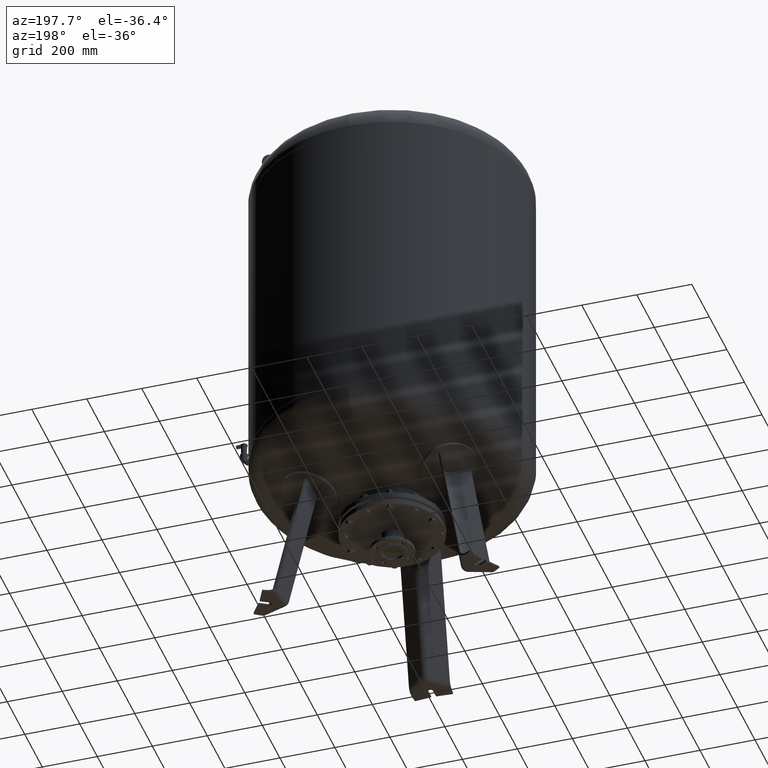
[diagram: clean part render]
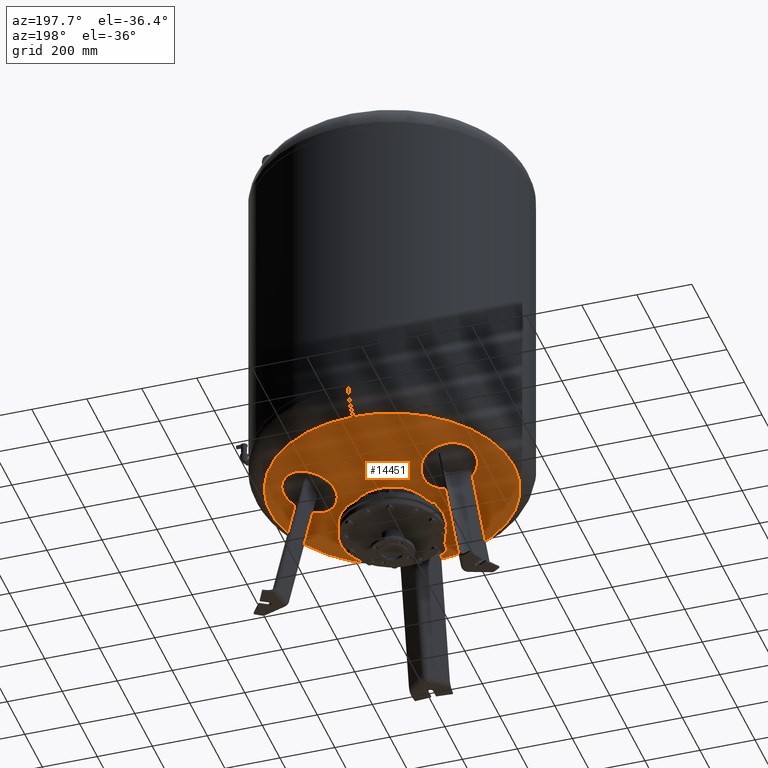
[diagram: same view with one face highlighted and labeled with its STEP entity id]
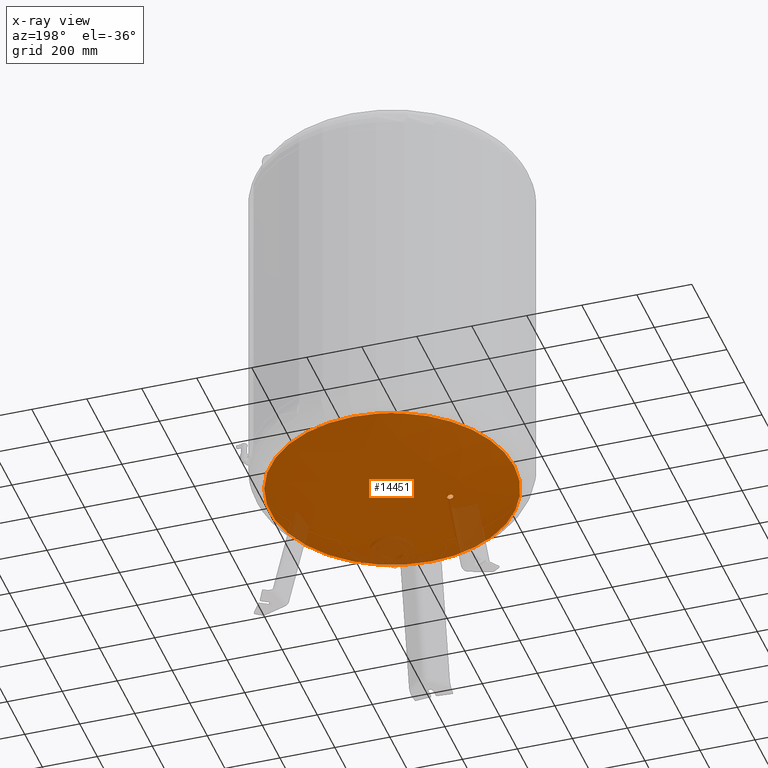
[diagram: x-ray of the same camera — body ghosted, the highlighted face saturated]
A machine part, auxiliary view. The second image highlights one B-rep face of the part: STEP entity #14451.
The next image is the same camera in x-ray: the body ghosted, the highlighted face saturated — about 10% of this face is hidden behind the body in this view.
In plain terms, the highlighted spherical surface has radius 1006 mm.
Its self-contained STEP definition (entity closure, byte-faithful):
#13837=CARTESIAN_POINT('',(-211.125624220251810,10.650000000000025,482.461211594779570));
#13838=VERTEX_POINT('',#13837);
#13854=CARTESIAN_POINT('',(-211.125624220251840,-10.649999999999979,482.461211594779460));
#13855=VERTEX_POINT('',#13854);
#13862=CARTESIAN_POINT('',(-211.125624220251840,-10.649999999999979,482.461211594779460));
#13863=CARTESIAN_POINT('',(-211.779366837099190,-10.649999999999979,482.601543445122730));
#13864=CARTESIAN_POINT('',(-212.455440132488210,-10.586020811985057,482.746668812052750));
#13865=CARTESIAN_POINT('',(-213.800320524656060,-10.316508147236522,483.035359855748140));
#13866=CARTESIAN_POINT('',(-214.469138658367290,-10.111032286166788,483.178927901604770));
#13867=CARTESIAN_POINT('',(-215.751922552204920,-9.567592266834247,483.454289478277810));
#13868=CARTESIAN_POINT('',(-216.366909830243170,-9.229195343095414,483.586302287240020));
#13869=CARTESIAN_POINT('',(-217.504221535740330,-8.447146982177264,483.830436995820550));
#13870=CARTESIAN_POINT('',(-218.026513927107150,-8.003446810011665,483.942552018269230));
#13871=CARTESIAN_POINT('',(-218.951040347873370,-7.057872723294627,484.141010422898830));
#13872=CARTESIAN_POINT('',(-219.384856037971620,-6.523702616499612,484.234133109701360));
#13873=CARTESIAN_POINT('',(-220.149485393383970,-5.360524383798429,484.398268132717360));
#13874=CARTESIAN_POINT('',(-220.480346687044520,-4.731549010339346,484.469290692466470));
#13875=CARTESIAN_POINT('',(-221.011686484263920,-3.419585184995595,484.583347899797220));
#13876=CARTESIAN_POINT('',(-221.212588135663030,-2.735551894637916,484.626473379908990));
#13877=CARTESIAN_POINT('',(-221.476101469240830,-1.360073995507774,484.683039063670090));
#13878=CARTESIAN_POINT('',(-221.538656816071100,-0.668618097348863,484.696467174334880));
#13879=CARTESIAN_POINT('',(-221.538656816071100,0.668618097348903,484.696467174334880));
#13880=CARTESIAN_POINT('',(-221.476101469240830,1.360073995507815,484.683039063670090));
#13881=CARTESIAN_POINT('',(-221.212588135663030,2.735551894637959,484.626473379908990));
#13882=CARTESIAN_POINT('',(-221.011686484263920,3.419585184995639,484.583347899797220));
#13883=CARTESIAN_POINT('',(-220.480346687044520,4.731549010339391,484.469290692466470));
#13884=CARTESIAN_POINT('',(-220.149485393383940,5.360524383798476,484.398268132717360));
#13885=CARTESIAN_POINT('',(-219.384856037971590,6.523702616499659,484.234133109701360));
#13886=CARTESIAN_POINT('',(-218.951040347873370,7.057872723294675,484.141010422898830));
#13887=CARTESIAN_POINT('',(-218.026513927107150,8.003446810011713,483.942552018269230));
#13888=CARTESIAN_POINT('',(-217.504221535740330,8.447146982177307,483.830436995820550));
#13889=CARTESIAN_POINT('',(-216.366909830243170,9.229195343095451,483.586302287240020));
#13890=CARTESIAN_POINT('',(-215.751922552204920,9.567592266834295,483.454289478277930));
#13891=CARTESIAN_POINT('',(-214.469138658367290,10.111032286166836,483.178927901604880));
#13892=CARTESIAN_POINT('',(-213.800320524656060,10.316508147236567,483.035359855748140));
#13893=CARTESIAN_POINT('',(-212.455440132488210,10.586020811985103,482.746668812052750));
#13894=CARTESIAN_POINT('',(-211.779366837099190,10.650000000000025,482.601543445122730));
#13895=CARTESIAN_POINT('',(-211.125624220251840,10.650000000000025,482.461211594779460));
#13896=B_SPLINE_CURVE_WITH_KNOTS('',3,(#13862,#13863,#13864,#13865,#13866,#13867,#13868,#13869,#13870,#13871,#13872,#13873,#13874,#13875,#13876,#13877,#13878,#13879,#13880,#13881,#13882,#13883,#13884,#13885,#13886,#13887,#13888,#13889,#13890,#13891,#13892,#13893,#13894,#13895),.UNSPECIFIED.,.F.,.U.,(4,2,2,2,2,2,2,2,2,2,2,2,2,2,2,2,4),(32.094068530974205,34.099972799808725,36.105877068643252,38.111781337477773,40.117685606312293,42.123539898358942,44.129394190405584,46.135248482452226,48.141102774498876,50.146957066545525,52.152811358592167,54.158665650638810,56.164519942685459,58.170424211519979,60.176328480354499,62.182232749189019,64.188137018023539),.UNSPECIFIED.);
#13897=EDGE_CURVE('',#13855,#13838,#13896,.T.);
#14350=CARTESIAN_POINT('',(1.211146E-014,-443.777777777777600,563.172616747466120));
#14351=VERTEX_POINT('',#14350);
#14367=CARTESIAN_POINT('',(-4.223385E-014,443.777777777777600,563.172616747466350));
#14368=VERTEX_POINT('',#14367);
#14376=CARTESIAN_POINT('',(-443.777777777777600,-1.895250E-014,563.172616747466240));
#14377=VERTEX_POINT('',#14376);
#14378=CARTESIAN_POINT('',(-1.384064E-014,-1.895250E-014,563.172616747466240));
#14379=DIRECTION('',(0.0,0.0,1.0));
#14380=DIRECTION('',(-1.0,0.0,0.0));
#14381=AXIS2_PLACEMENT_3D('',#14378,#14379,#14380);
#14382=CIRCLE('',#14381,443.777777777777600);
#14383=EDGE_CURVE('',#14368,#14377,#14382,.T.);
#14385=CARTESIAN_POINT('',(-1.384064E-014,-1.895250E-014,563.172616747466240));
#14386=DIRECTION('',(0.0,0.0,1.0));
#14387=DIRECTION('',(-1.0,0.0,0.0));
#14388=AXIS2_PLACEMENT_3D('',#14385,#14386,#14387);
#14389=CIRCLE('',#14388,443.777777777777600);
#14390=EDGE_CURVE('',#14377,#14351,#14389,.T.);
#14395=CARTESIAN_POINT('',(-2.223045E-013,-1.847992E-013,1466.0));
#14396=DIRECTION('',(0.0,-1.0,0.0));
#14397=DIRECTION('',(1.0,0.0,0.0));
#14398=AXIS2_PLACEMENT_3D('',#14395,#14396,#14397);
#14399=SPHERICAL_SURFACE('',#14398,1006.000000000000100);
#14400=ORIENTED_EDGE('',*,*,#14390,.F.);
#14401=ORIENTED_EDGE('',*,*,#14383,.F.);
#14402=CARTESIAN_POINT('',(-1.384064E-014,-1.895250E-014,563.172616747466240));
#14403=DIRECTION('',(0.0,0.0,1.0));
#14404=DIRECTION('',(-1.0,0.0,0.0));
#14405=AXIS2_PLACEMENT_3D('',#14402,#14403,#14404);
#14406=CIRCLE('',#14405,443.777777777777600);
#14407=EDGE_CURVE('',#14351,#14368,#14406,.T.);
#14408=ORIENTED_EDGE('',*,*,#14407,.F.);
#14409=EDGE_LOOP('',(#14400,#14401,#14408));
#14410=FACE_OUTER_BOUND('',#14409,.T.);
#14411=CARTESIAN_POINT('',(-211.125624220251840,10.650000000000025,482.461211594779460));
#14412=CARTESIAN_POINT('',(-210.471881601776740,10.650000000000025,482.320879744086770));
#14413=CARTESIAN_POINT('',(-209.795808291734690,10.586020811668353,482.175754437149860));
#14414=CARTESIAN_POINT('',(-208.450927843160910,10.316508146035659,481.887063639687370));
#14415=CARTESIAN_POINT('',(-207.782109667580980,10.111032285181981,481.743495779879080));
#14416=CARTESIAN_POINT('',(-206.499325670120810,9.567592263440147,481.468134671375140));
#14417=CARTESIAN_POINT('',(-205.884338329224930,9.229195339867466,481.336122144238400));
#14418=CARTESIAN_POINT('',(-204.747026489921500,8.447146978150595,481.091988040865150));
#14419=CARTESIAN_POINT('',(-204.224734027310090,8.003446805672720,480.979873341086030));
#14420=CARTESIAN_POINT('',(-203.300207469747620,7.057872719210343,480.781415560182670));
#14421=CARTESIAN_POINT('',(-202.866391709050130,6.523702613103928,480.688293196180550));
#14422=CARTESIAN_POINT('',(-202.101762220856560,5.360524381699865,480.524158778579020));
#14423=CARTESIAN_POINT('',(-201.770900864883910,4.731549009030496,480.453136500767410));
#14424=CARTESIAN_POINT('',(-201.239560964986250,3.419585184399890,480.339079761801200));
#14425=CARTESIAN_POINT('',(-201.038659272105550,2.735551894433304,480.295954467818830));
#14426=CARTESIAN_POINT('',(-200.775145883929530,1.360073995652741,480.239389030676310));
#14427=CARTESIAN_POINT('',(-200.712590523707350,0.668618097514268,480.225960980274750));
#14428=CARTESIAN_POINT('',(-200.712590523707350,-0.668618097514221,480.225960980274750));
#14429=CARTESIAN_POINT('',(-200.775145883929530,-1.360073995652695,480.239389030676310));
#14430=CARTESIAN_POINT('',(-201.038659272105550,-2.735551894433257,480.295954467818830));
#14431=CARTESIAN_POINT('',(-201.239560964986250,-3.419585184399842,480.339079761801200));
#14432=CARTESIAN_POINT('',(-201.770900864883910,-4.731549009030447,480.453136500767410));
#14433=CARTESIAN_POINT('',(-202.101762220856560,-5.360524381699816,480.524158778579020));
#14434=CARTESIAN_POINT('',(-202.866391709050130,-6.523702613103879,480.688293196180550));
#14435=CARTESIAN_POINT('',(-203.300207469747620,-7.057872719210294,480.781415560182670));
#14436=CARTESIAN_POINT('',(-204.224734027310090,-8.003446805672674,480.979873341086030));
#14437=CARTESIAN_POINT('',(-204.747026489921500,-8.447146978150547,481.091988040865150));
#14438=CARTESIAN_POINT('',(-205.884338329224930,-9.229195339867419,481.336122144238400));
#14439=CARTESIAN_POINT('',(-206.499325670120810,-9.567592263440101,481.468134671375140));
#14440=CARTESIAN_POINT('',(-207.782109667580980,-10.111032285181935,481.743495779879080));
#14441=CARTESIAN_POINT('',(-208.450927843160910,-10.316508146035615,481.887063639687370));
#14442=CARTESIAN_POINT('',(-209.795808291734690,-10.586020811668309,482.175754437149860));
#14443=CARTESIAN_POINT('',(-210.471881601776740,-10.649999999999979,482.320879744086770));
#14444=CARTESIAN_POINT('',(-211.125624220251840,-10.649999999999979,482.461211594779460));
#14445=B_SPLINE_CURVE_WITH_KNOTS('',3,(#14411,#14412,#14413,#14414,#14415,#14416,#14417,#14418,#14419,#14420,#14421,#14422,#14423,#14424,#14425,#14426,#14427,#14428,#14429,#14430,#14431,#14432,#14433,#14434,#14435,#14436,#14437,#14438,#14439,#14440,#14441,#14442,#14443,#14444),.UNSPECIFIED.,.F.,.U.,(4,2,2,2,2,2,2,2,2,2,2,2,2,2,2,2,4),(0.0,2.005904273829041,4.011808547658083,6.017712821487124,8.023617095316165,10.029471387858898,12.035325680401632,14.041179972944366,16.047034265487099,18.052888558029835,20.058742850572568,22.064597143115300,24.070451435658036,26.076355709487078,28.082259983316121,30.088164257145163,32.094068530974205),.UNSPECIFIED.);
#14446=EDGE_CURVE('',#13838,#13855,#14445,.T.);
#14447=ORIENTED_EDGE('',*,*,#14446,.F.);
#14448=ORIENTED_EDGE('',*,*,#13897,.F.);
#14449=EDGE_LOOP('',(#14447,#14448));
#14450=FACE_BOUND('',#14449,.T.);
#14451=ADVANCED_FACE('',(#14410,#14450),#14399,.T.);